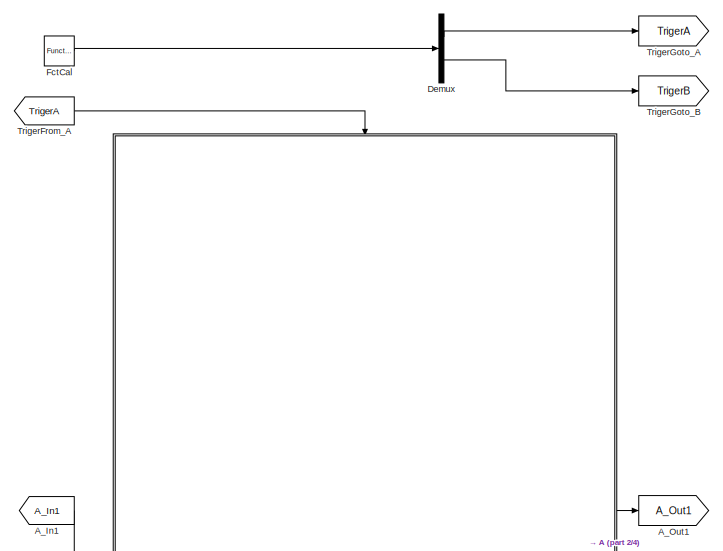
[diagram: root canvas - part 1/4, full width, top band]
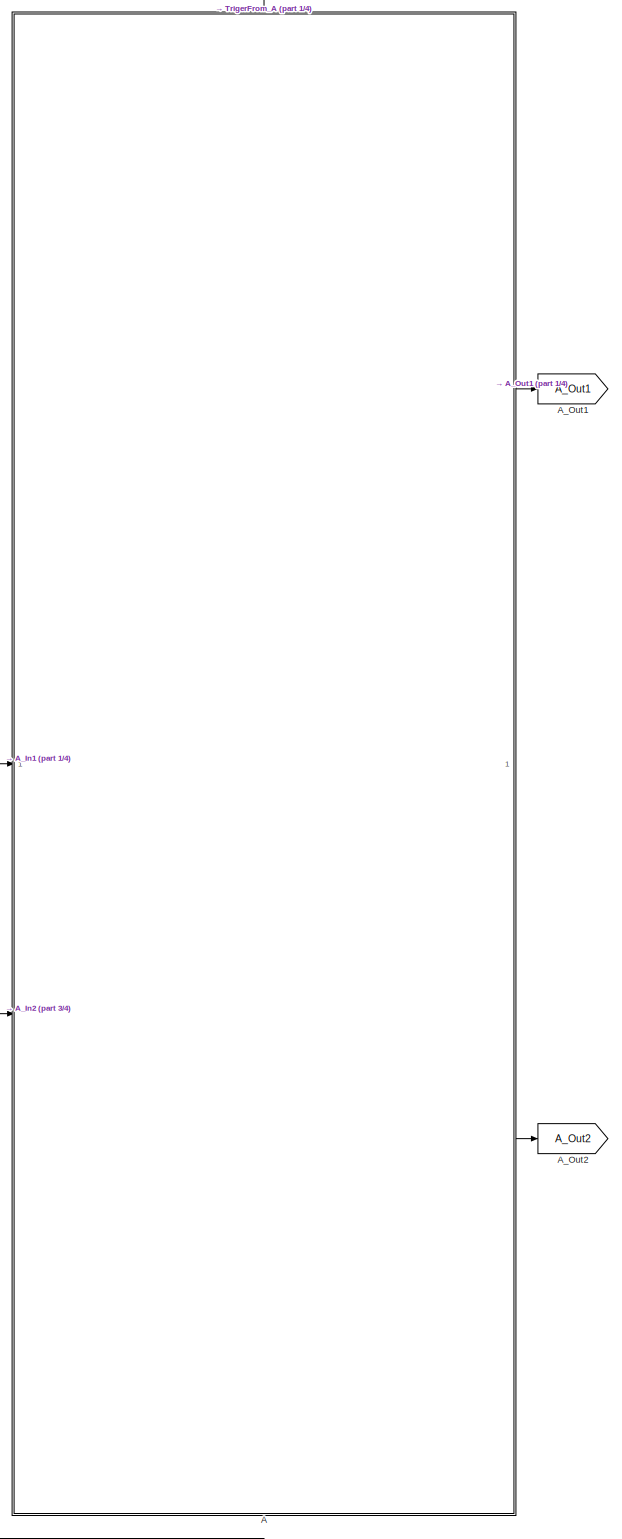
[diagram: root canvas - part 2/4, full width, top band]
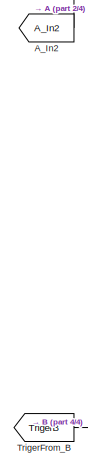
[diagram: root canvas - part 3/4, middle left region]
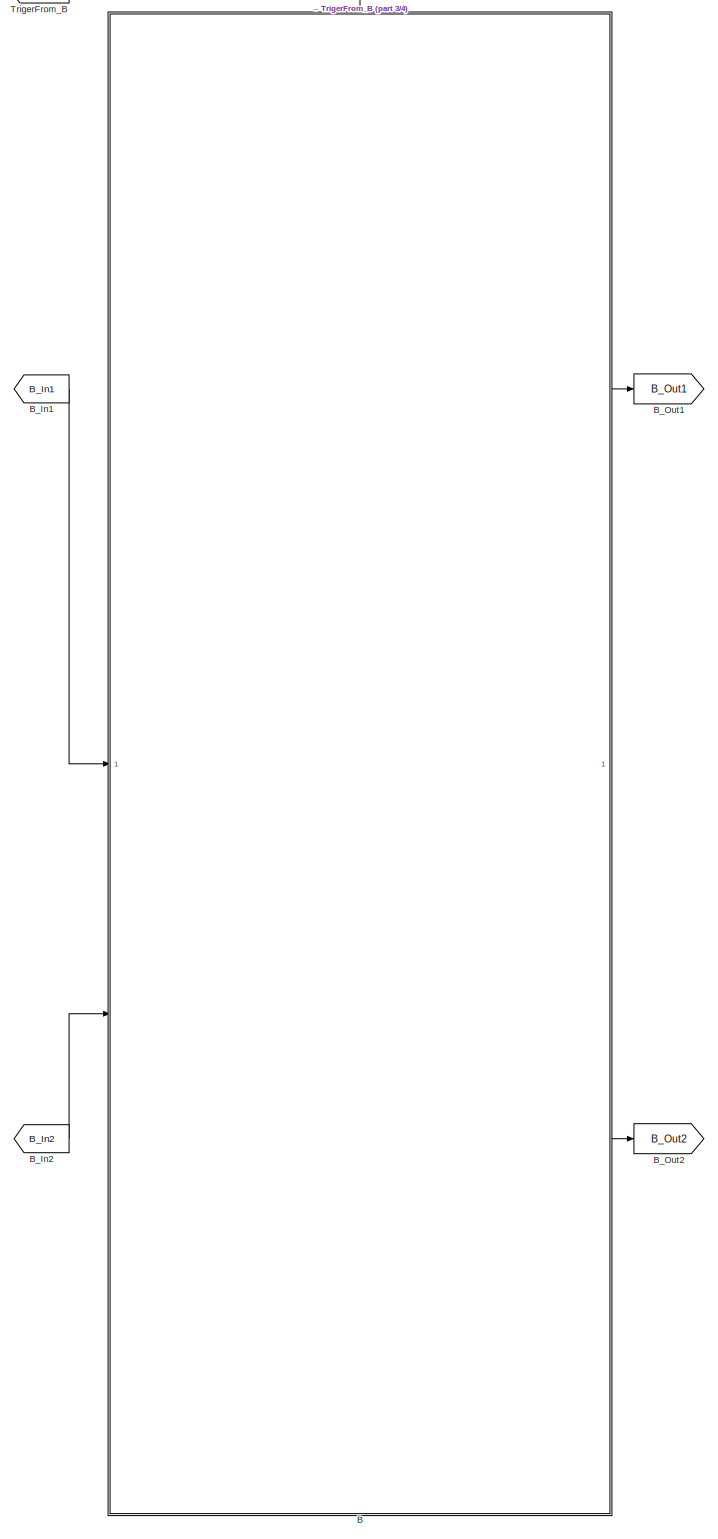
[diagram: root canvas - part 4/4, full width, bottom band]
MODEL slx_0ddfdc4f979c
KIND model
CONFIG AbsTol = auto
CONFIG EnableMultiTasking = off
CONFIG FixedStep = auto
CONFIG MaxStep = auto
CONFIG MinStep = auto
CONFIG RelTol = 1e-3
CONFIG SampleTimeConstraint = Unconstrained
CONFIG SolverName = VariableStepAuto
CONFIG StartTime = 0.0
CONFIG StopTime = 10.0
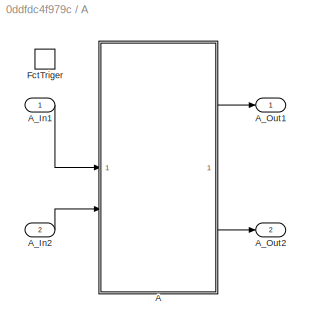
BLOCK [SubSystem] A
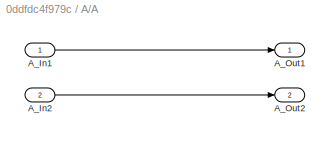
BLOCK [SubSystem] A/A
BLOCK [Inport] A/A/A_In1
BLOCK [Inport] A/A/A_In2
  Port = 2
BLOCK [Outport] A/A/A_Out1
BLOCK [Outport] A/A/A_Out2
  Port = 2
BLOCK [Inport] A/A_In1
BLOCK [Inport] A/A_In2
  Port = 2
BLOCK [Outport] A/A_Out1
BLOCK [Outport] A/A_Out2
  Port = 2
BLOCK [TriggerPort] A/FctTriger
  PortDimensions = 1
  StatesWhenEnabling = held
  TriggerType = function-call
  VariantControl = (inherit)
BLOCK [From] A_In1
  GotoTag = A_In1
BLOCK [From] A_In2
  GotoTag = A_In2
BLOCK [Goto] A_Out1
  GotoTag = A_Out1
BLOCK [Goto] A_Out2
  GotoTag = A_Out2
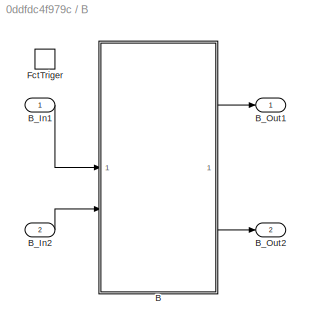
BLOCK [SubSystem] B
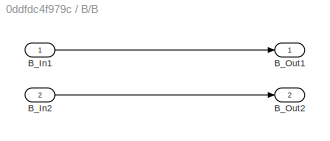
BLOCK [SubSystem] B/B
BLOCK [Inport] B/B/B_In1
BLOCK [Inport] B/B/B_In2
  Port = 2
BLOCK [Outport] B/B/B_Out1
BLOCK [Outport] B/B/B_Out2
  Port = 2
BLOCK [Inport] B/B_In1
BLOCK [Inport] B/B_In2
  Port = 2
BLOCK [Outport] B/B_Out1
BLOCK [Outport] B/B_Out2
  Port = 2
BLOCK [TriggerPort] B/FctTriger
  PortDimensions = 1
  StatesWhenEnabling = held
  TriggerType = function-call
  VariantControl = (inherit)
BLOCK [From] B_In1
  GotoTag = B_In1
BLOCK [From] B_In2
  GotoTag = B_In2
BLOCK [Goto] B_Out1
  GotoTag = B_Out1
BLOCK [Goto] B_Out2
  GotoTag = B_Out2
BLOCK [Demux] Demux
  Outputs = 2
BLOCK [Reference] FctCal  REF=simulink/Ports &
Subsystems/Function-Call
Generator
  SourceBlock = simulink/Ports &\nSubsystems/Function-Call\nGenerator
  SourceType = Function-Call Generator
BLOCK [From] TrigerFrom_A
  GotoTag = TrigerA
BLOCK [From] TrigerFrom_B
  GotoTag = TrigerB
BLOCK [Goto] TrigerGoto_A
  GotoTag = TrigerA
BLOCK [Goto] TrigerGoto_B
  GotoTag = TrigerB
LINE A/A/A_In1:1 -> A/A/A_Out1:1
LINE A/A/A_In2:1 -> A/A/A_Out2:1
LINE A/A:1 -> A/A_Out1:1
LINE A/A:2 -> A/A_Out2:1
LINE A/A_In1:1 -> A/A:1
LINE A/A_In2:1 -> A/A:2
LINE A:1 -> A_Out1:1
LINE A:2 -> A_Out2:1
LINE A_In1:1 -> A:1
LINE A_In2:1 -> A:2
LINE B/B/B_In1:1 -> B/B/B_Out1:1
LINE B/B/B_In2:1 -> B/B/B_Out2:1
LINE B/B:1 -> B/B_Out1:1
LINE B/B:2 -> B/B_Out2:1
LINE B/B_In1:1 -> B/B:1
LINE B/B_In2:1 -> B/B:2
LINE B:1 -> B_Out1:1
LINE B:2 -> B_Out2:1
LINE B_In1:1 -> B:1
LINE B_In2:1 -> B:2
LINE Demux:1 -> TrigerGoto_A:1
LINE Demux:2 -> TrigerGoto_B:1
LINE FctCal:1 -> Demux:1
LINE TrigerFrom_A:1 -> A:trigger
LINE TrigerFrom_B:1 -> B:trigger
